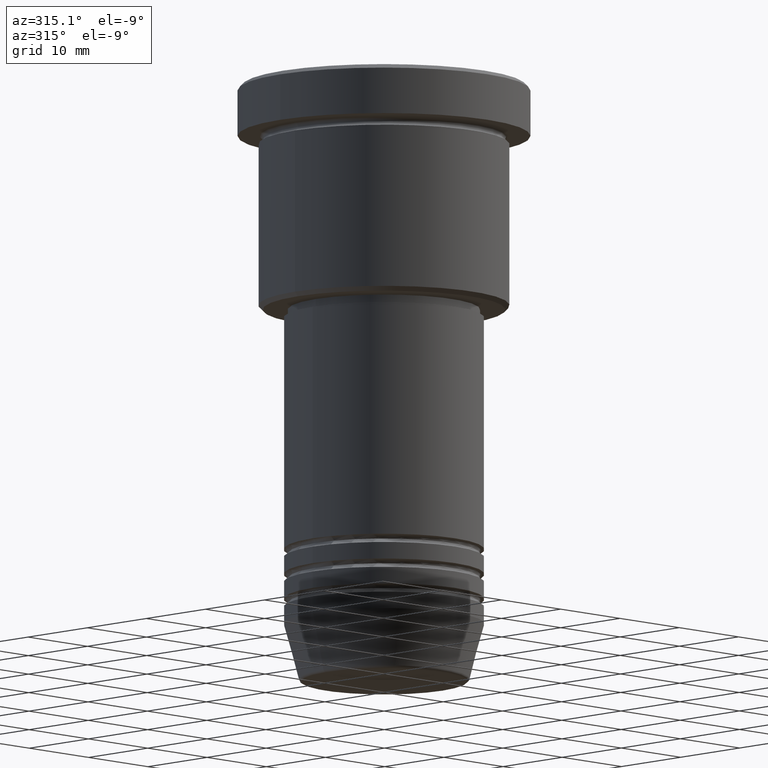
[diagram: clean part render]
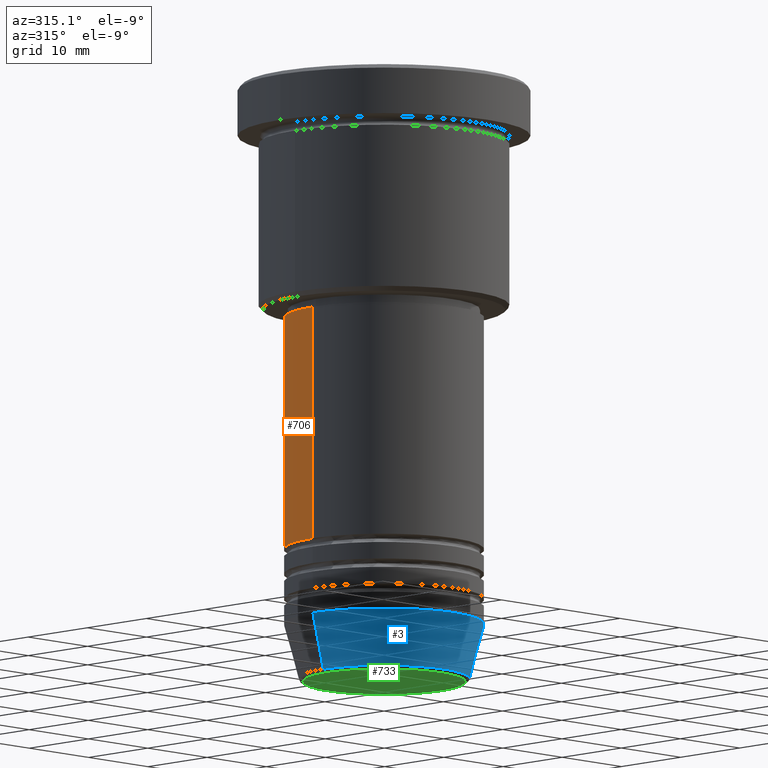
[diagram: same view with three faces highlighted in distinct colors, each labeled with its STEP entity id]
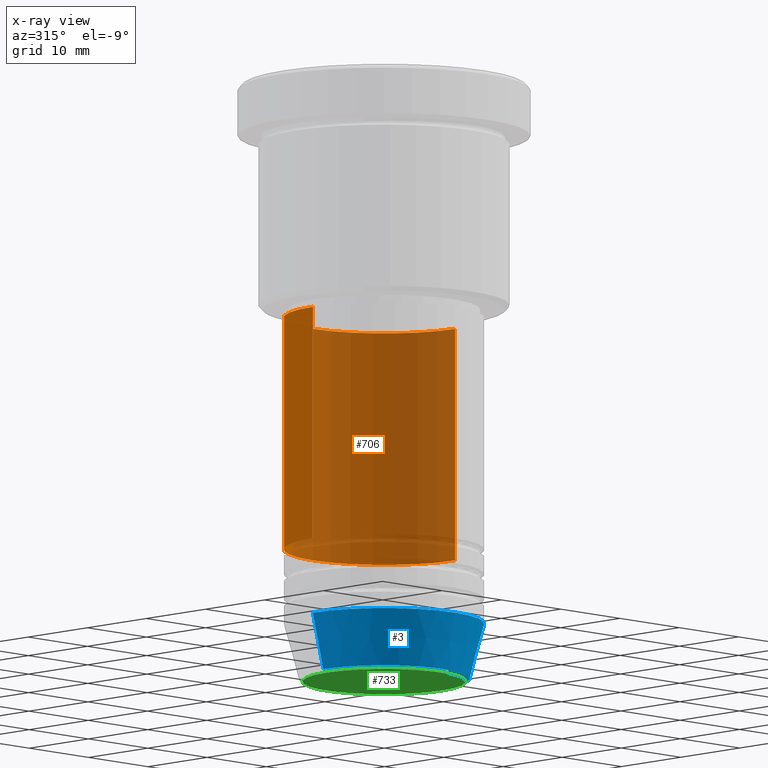
[diagram: x-ray of the same camera — body ghosted, the three highlighted faces saturated]
A machine part, auxiliary view with three faces highlighted in distinct colors.
The next image is the same camera in x-ray (body ghosted, the three faces saturated) — at least one of them is partly hidden behind the body in this view.
Their STEP definitions:

[orange] entity #706 — the highlighted cylindrical surface (partial cylindrical patch) has radius 12 mm, axis along (-0, -0, 1).
#28 = AXIS2_PLACEMENT_3D ( 'NONE', #928, #302, #110 ) ;
#64 = EDGE_CURVE ( 'NONE', #916, #1180, #371, .T. ) ;
#99 = EDGE_CURVE ( 'NONE', #1113, #916, #1050, .T. ) ;
#110 = DIRECTION ( 'NONE',  ( 1.000000000000000000, 0.000000000000000000, 0.000000000000000000 ) ) ;
#144 = CARTESIAN_POINT ( 'NONE',  ( 0.000000000000000000, 0.000000000000000000, -28.00000000000000355 ) ) ;
#145 = AXIS2_PLACEMENT_3D ( 'NONE', #215, #291, #918 ) ;
#215 = CARTESIAN_POINT ( 'NONE',  ( 0.000000000000000000, 0.000000000000000000, 0.000000000000000000 ) ) ;
#243 = CARTESIAN_POINT ( 'NONE',  ( 12.00000000000000000, 0.000000000000000000, -28.00000000000000355 ) ) ;
#254 = CARTESIAN_POINT ( 'NONE',  ( 12.00000000000000000, 0.000000000000000000, -55.99999999999997868 ) ) ;
#256 = DIRECTION ( 'NONE',  ( 1.000000000000000000, 0.000000000000000000, 0.000000000000000000 ) ) ;
#288 = FACE_OUTER_BOUND ( 'NONE', #676, .T. ) ;
#291 = DIRECTION ( 'NONE',  ( -0.000000000000000000, -0.000000000000000000, 1.000000000000000000 ) ) ;
#302 = DIRECTION ( 'NONE',  ( -0.000000000000000000, -0.000000000000000000, 1.000000000000000000 ) ) ;
#361 = EDGE_CURVE ( 'NONE', #935, #1180, #463, .T. ) ;
#371 = CIRCLE ( 'NONE', #1040, 12.00000000000000000 ) ;
#390 = VECTOR ( 'NONE', #735, 1000.000000000000000 ) ;
#434 = ORIENTED_EDGE ( 'NONE', *, *, #99, .F. ) ;
#463 = LINE ( 'NONE', #473, #390 ) ;
#473 = CARTESIAN_POINT ( 'NONE',  ( -12.00000000000000000, 1.469576158976823947E-15, 0.000000000000000000 ) ) ;
#476 = ORIENTED_EDGE ( 'NONE', *, *, #361, .T. ) ;
#587 = CARTESIAN_POINT ( 'NONE',  ( -12.00000000000000000, 1.469576158976823947E-15, -55.99999999999997868 ) ) ;
#676 = EDGE_LOOP ( 'NONE', ( #1002, #476, #1072, #434 ) ) ;
#706 = ADVANCED_FACE ( 'NONE', ( #288 ), #1006, .T. ) ;
#735 = DIRECTION ( 'NONE',  ( -0.000000000000000000, -0.000000000000000000, 1.000000000000000000 ) ) ;
#744 = EDGE_CURVE ( 'NONE', #1113, #935, #883, .T. ) ;
#763 = DIRECTION ( 'NONE',  ( -0.000000000000000000, -0.000000000000000000, 1.000000000000000000 ) ) ;
#782 = DIRECTION ( 'NONE',  ( -0.000000000000000000, -0.000000000000000000, 1.000000000000000000 ) ) ;
#883 = CIRCLE ( 'NONE', #28, 12.00000000000000000 ) ;
#916 = VERTEX_POINT ( 'NONE', #243 ) ;
#918 = DIRECTION ( 'NONE',  ( 1.000000000000000000, 0.000000000000000000, 0.000000000000000000 ) ) ;
#919 = VECTOR ( 'NONE', #782, 1000.000000000000000 ) ;
#928 = CARTESIAN_POINT ( 'NONE',  ( 0.000000000000000000, 0.000000000000000000, -55.99999999999997868 ) ) ;
#932 = CARTESIAN_POINT ( 'NONE',  ( -12.00000000000000000, 1.469576158976823947E-15, -28.00000000000000355 ) ) ;
#935 = VERTEX_POINT ( 'NONE', #587 ) ;
#967 = CARTESIAN_POINT ( 'NONE',  ( 12.00000000000000000, 0.000000000000000000, 0.000000000000000000 ) ) ;
#1002 = ORIENTED_EDGE ( 'NONE', *, *, #744, .T. ) ;
#1006 = CYLINDRICAL_SURFACE ( 'NONE', #145, 12.00000000000000000 ) ;
#1040 = AXIS2_PLACEMENT_3D ( 'NONE', #144, #763, #256 ) ;
#1050 = LINE ( 'NONE', #967, #919 ) ;
#1072 = ORIENTED_EDGE ( 'NONE', *, *, #64, .F. ) ;
#1113 = VERTEX_POINT ( 'NONE', #254 ) ;
#1180 = VERTEX_POINT ( 'NONE', #932 ) ;

[blue] entity #3 — the highlighted conical surface has half-angle 15 deg.
#3 = ADVANCED_FACE ( 'NONE', ( #870 ), #465, .T. ) ;
#21 = EDGE_CURVE ( 'NONE', #347, #297, #50, .T. ) ;
#35 = DIRECTION ( 'NONE',  ( -0.000000000000000000, -0.000000000000000000, 1.000000000000000000 ) ) ;
#37 = EDGE_LOOP ( 'NONE', ( #1145, #987, #38, #975 ) ) ;
#38 = ORIENTED_EDGE ( 'NONE', *, *, #618, .T. ) ;
#47 = AXIS2_PLACEMENT_3D ( 'NONE', #430, #315, #951 ) ;
#50 = LINE ( 'NONE', #421, #141 ) ;
#107 = VERTEX_POINT ( 'NONE', #237 ) ;
#131 = CARTESIAN_POINT ( 'NONE',  ( 0.000000000000000000, 0.000000000000000000, -71.62940952255127058 ) ) ;
#141 = VECTOR ( 'NONE', #231, 1000.000000000000000 ) ;
#149 = DIRECTION ( 'NONE',  ( -0.000000000000000000, -0.000000000000000000, 1.000000000000000000 ) ) ;
#216 = CARTESIAN_POINT ( 'NONE',  ( -12.00000000000000000, 1.469576158976823947E-15, -65.00000000000000000 ) ) ;
#231 = DIRECTION ( 'NONE',  ( -0.2588190451025213501, 3.169619151431772337E-17, 0.9659258262890680902 ) ) ;
#237 = CARTESIAN_POINT ( 'NONE',  ( 12.00000000000000000, 0.000000000000000000, -65.00000000000000000 ) ) ;
#287 = CIRCLE ( 'NONE', #566, 12.00000000000000000 ) ;
#297 = VERTEX_POINT ( 'NONE', #216 ) ;
#310 = VERTEX_POINT ( 'NONE', #1035 ) ;
#313 = DIRECTION ( 'NONE',  ( 1.000000000000000000, 0.000000000000000000, 0.000000000000000000 ) ) ;
#315 = DIRECTION ( 'NONE',  ( -0.000000000000000000, -0.000000000000000000, 1.000000000000000000 ) ) ;
#336 = AXIS2_PLACEMENT_3D ( 'NONE', #131, #149, #1144 ) ;
#346 = CARTESIAN_POINT ( 'NONE',  ( 12.00000000000000000, 0.000000000000000000, -65.00000000000000000 ) ) ;
#347 = VERTEX_POINT ( 'NONE', #915 ) ;
#402 = EDGE_CURVE ( 'NONE', #347, #310, #863, .T. ) ;
#421 = CARTESIAN_POINT ( 'NONE',  ( -12.00000000000000000, 1.469576158976823947E-15, -65.00000000000000000 ) ) ;
#430 = CARTESIAN_POINT ( 'NONE',  ( 0.000000000000000000, 0.000000000000000000, -65.00000000000000000 ) ) ;
#452 = DIRECTION ( 'NONE',  ( 0.2588190451025213501, 0.000000000000000000, 0.9659258262890680902 ) ) ;
#465 = CONICAL_SURFACE ( 'NONE', #47, 12.00000000000000000, 0.2617993877991500740 ) ;
#566 = AXIS2_PLACEMENT_3D ( 'NONE', #774, #35, #313 ) ;
#618 = EDGE_CURVE ( 'NONE', #310, #107, #877, .T. ) ;
#774 = CARTESIAN_POINT ( 'NONE',  ( 0.000000000000000000, 0.000000000000000000, -65.00000000000000000 ) ) ;
#822 = VECTOR ( 'NONE', #452, 1000.000000000000000 ) ;
#850 = EDGE_CURVE ( 'NONE', #297, #107, #287, .T. ) ;
#863 = CIRCLE ( 'NONE', #336, 10.22365507213718949 ) ;
#870 = FACE_OUTER_BOUND ( 'NONE', #37, .T. ) ;
#877 = LINE ( 'NONE', #346, #822 ) ;
#915 = CARTESIAN_POINT ( 'NONE',  ( -10.22365507213718949, 1.360806402472382547E-15, -71.62940952255127058 ) ) ;
#951 = DIRECTION ( 'NONE',  ( 1.000000000000000000, 0.000000000000000000, 0.000000000000000000 ) ) ;
#975 = ORIENTED_EDGE ( 'NONE', *, *, #850, .F. ) ;
#987 = ORIENTED_EDGE ( 'NONE', *, *, #402, .T. ) ;
#1035 = CARTESIAN_POINT ( 'NONE',  ( 10.22365507213718949, 0.000000000000000000, -71.62940952255127058 ) ) ;
#1144 = DIRECTION ( 'NONE',  ( 1.000000000000000000, 0.000000000000000000, 0.000000000000000000 ) ) ;
#1145 = ORIENTED_EDGE ( 'NONE', *, *, #21, .F. ) ;

[green] entity #733 — the highlighted planar face has unit normal (0, -0, 1).
#1 = DIRECTION ( 'NONE',  ( 1.000000000000000000, 0.000000000000000000, 0.000000000000000000 ) ) ;
#69 = AXIS2_PLACEMENT_3D ( 'NONE', #669, #120, #760 ) ;
#120 = DIRECTION ( 'NONE',  ( 0.000000000000000000, 0.000000000000000000, -1.000000000000000000 ) ) ;
#123 = DIRECTION ( 'NONE',  ( 1.000000000000000000, 0.000000000000000000, 0.000000000000000000 ) ) ;
#200 = VERTEX_POINT ( 'NONE', #813 ) ;
#330 = EDGE_CURVE ( 'NONE', #200, #971, #803, .T. ) ;
#504 = CARTESIAN_POINT ( 'NONE',  ( 9.740692158992654726, 0.000000000000000000, -72.00000000000001421 ) ) ;
#562 = DIRECTION ( 'NONE',  ( 0.000000000000000000, 0.000000000000000000, -1.000000000000000000 ) ) ;
#585 = CIRCLE ( 'NONE', #69, 9.740692158992654726 ) ;
#637 = ORIENTED_EDGE ( 'NONE', *, *, #330, .T. ) ;
#653 = CARTESIAN_POINT ( 'NONE',  ( 0.000000000000000000, 0.000000000000000000, -72.00000000000001421 ) ) ;
#669 = CARTESIAN_POINT ( 'NONE',  ( 0.000000000000000000, 0.000000000000000000, -72.00000000000001421 ) ) ;
#733 = ADVANCED_FACE ( 'NONE', ( #740 ), #1112, .F. ) ;
#740 = FACE_OUTER_BOUND ( 'NONE', #1104, .T. ) ;
#760 = DIRECTION ( 'NONE',  ( 1.000000000000000000, 0.000000000000000000, 0.000000000000000000 ) ) ;
#803 = CIRCLE ( 'NONE', #903, 9.740692158992654726 ) ;
#813 = CARTESIAN_POINT ( 'NONE',  ( -9.740692158992654726, 1.222463696683474210E-15, -72.00000000000001421 ) ) ;
#856 = EDGE_CURVE ( 'NONE', #971, #200, #585, .T. ) ;
#903 = AXIS2_PLACEMENT_3D ( 'NONE', #653, #562, #123 ) ;
#971 = VERTEX_POINT ( 'NONE', #504 ) ;
#1015 = DIRECTION ( 'NONE',  ( 0.000000000000000000, -0.000000000000000000, 1.000000000000000000 ) ) ;
#1018 = ORIENTED_EDGE ( 'NONE', *, *, #856, .T. ) ;
#1045 = AXIS2_PLACEMENT_3D ( 'NONE', #1123, #1015, #1 ) ;
#1104 = EDGE_LOOP ( 'NONE', ( #1018, #637 ) ) ;
#1112 = PLANE ( 'NONE',  #1045 ) ;
#1123 = CARTESIAN_POINT ( 'NONE',  ( 0.000000000000000000, 0.000000000000000000, -72.00000000000001421 ) ) ;